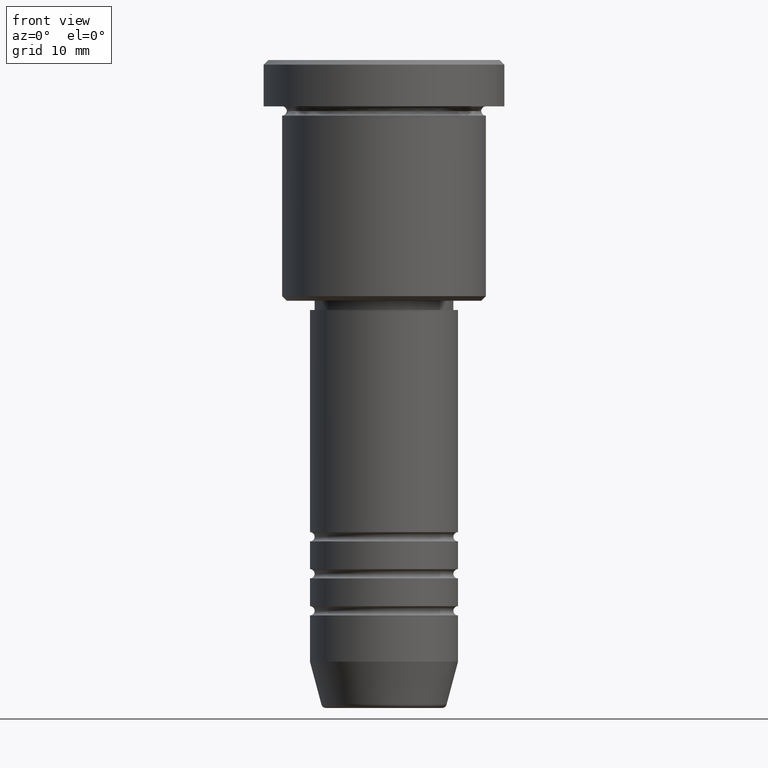
[diagram: clean part render]
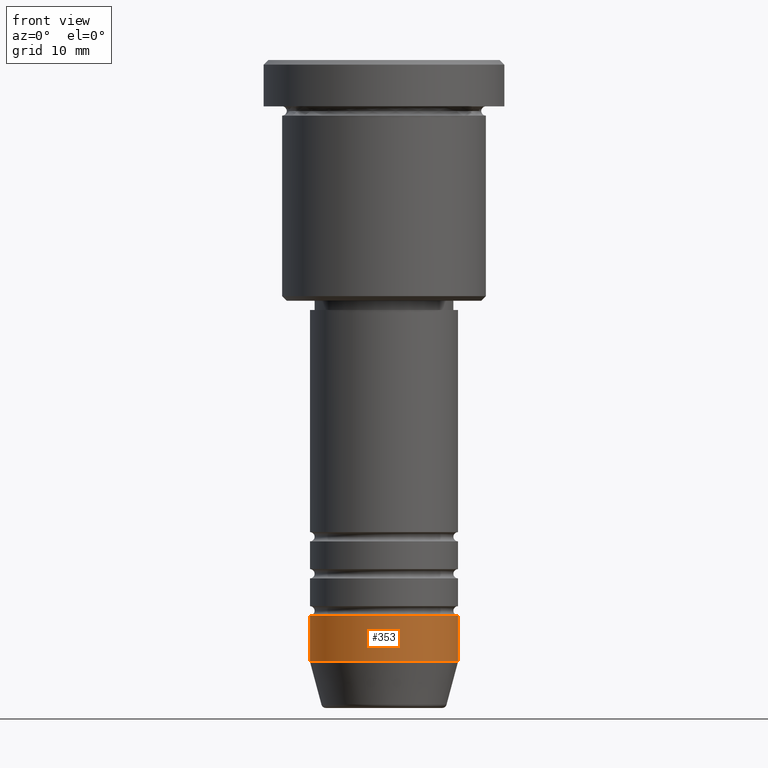
[diagram: same view with one face highlighted and labeled with its STEP entity id]
A machine part, front view. The second image highlights one B-rep face of the part: STEP entity #353.
In plain terms, the highlighted cylindrical surface (partial cylindrical patch) has radius 8 mm, axis along (-0, -0, 1).
Its self-contained STEP definition (entity closure, byte-faithful):
#82 = FACE_OUTER_BOUND ( 'NONE', #662, .T. ) ;
#96 = AXIS2_PLACEMENT_3D ( 'NONE', #217, #597, #515 ) ;
#104 = EDGE_CURVE ( 'NONE', #1140, #510, #168, .T. ) ;
#152 = VERTEX_POINT ( 'NONE', #626 ) ;
#168 = CIRCLE ( 'NONE', #96, 8.000000000000000000 ) ;
#169 = ORIENTED_EDGE ( 'NONE', *, *, #104, .T. ) ;
#195 = EDGE_CURVE ( 'NONE', #510, #152, #767, .T. ) ;
#214 = DIRECTION ( 'NONE',  ( 1.000000000000000000, 0.000000000000000000, 0.000000000000000000 ) ) ;
#217 = CARTESIAN_POINT ( 'NONE',  ( 0.000000000000000000, 0.000000000000000000, -65.00000000000000000 ) ) ;
#254 = DIRECTION ( 'NONE',  ( -0.000000000000000000, -0.000000000000000000, 1.000000000000000000 ) ) ;
#260 = CARTESIAN_POINT ( 'NONE',  ( 8.000000000000000000, 0.000000000000000000, -65.00000000000000000 ) ) ;
#286 = AXIS2_PLACEMENT_3D ( 'NONE', #607, #1051, #214 ) ;
#303 = VECTOR ( 'NONE', #756, 1000.000000000000000 ) ;
#353 = ADVANCED_FACE ( 'NONE', ( #82 ), #424, .T. ) ;
#424 = CYLINDRICAL_SURFACE ( 'NONE', #1154, 8.000000000000000000 ) ;
#453 = CIRCLE ( 'NONE', #286, 8.000000000000000000 ) ;
#510 = VERTEX_POINT ( 'NONE', #260 ) ;
#515 = DIRECTION ( 'NONE',  ( 1.000000000000000000, 0.000000000000000000, 0.000000000000000000 ) ) ;
#577 = CARTESIAN_POINT ( 'NONE',  ( 8.000000000000000000, 0.000000000000000000, 0.000000000000000000 ) ) ;
#595 = LINE ( 'NONE', #860, #303 ) ;
#597 = DIRECTION ( 'NONE',  ( -0.000000000000000000, -0.000000000000000000, 1.000000000000000000 ) ) ;
#600 = ORIENTED_EDGE ( 'NONE', *, *, #195, .T. ) ;
#607 = CARTESIAN_POINT ( 'NONE',  ( 0.000000000000000000, 0.000000000000000000, -60.00000000000000711 ) ) ;
#608 = VECTOR ( 'NONE', #1128, 1000.000000000000000 ) ;
#626 = CARTESIAN_POINT ( 'NONE',  ( 8.000000000000000000, 0.000000000000000000, -60.00000000000000711 ) ) ;
#662 = EDGE_LOOP ( 'NONE', ( #821, #169, #600, #665 ) ) ;
#665 = ORIENTED_EDGE ( 'NONE', *, *, #704, .F. ) ;
#704 = EDGE_CURVE ( 'NONE', #1089, #152, #453, .T. ) ;
#756 = DIRECTION ( 'NONE',  ( -0.000000000000000000, -0.000000000000000000, 1.000000000000000000 ) ) ;
#767 = LINE ( 'NONE', #577, #608 ) ;
#821 = ORIENTED_EDGE ( 'NONE', *, *, #936, .F. ) ;
#860 = CARTESIAN_POINT ( 'NONE',  ( -8.000000000000000000, 9.797174393178825657E-16, 0.000000000000000000 ) ) ;
#936 = EDGE_CURVE ( 'NONE', #1140, #1089, #595, .T. ) ;
#988 = DIRECTION ( 'NONE',  ( 1.000000000000000000, 0.000000000000000000, 0.000000000000000000 ) ) ;
#989 = CARTESIAN_POINT ( 'NONE',  ( -8.000000000000000000, 9.797174393178825657E-16, -65.00000000000000000 ) ) ;
#1051 = DIRECTION ( 'NONE',  ( -0.000000000000000000, -0.000000000000000000, 1.000000000000000000 ) ) ;
#1052 = CARTESIAN_POINT ( 'NONE',  ( -8.000000000000000000, 9.797174393178825657E-16, -60.00000000000000711 ) ) ;
#1085 = CARTESIAN_POINT ( 'NONE',  ( 0.000000000000000000, 0.000000000000000000, 0.000000000000000000 ) ) ;
#1089 = VERTEX_POINT ( 'NONE', #1052 ) ;
#1128 = DIRECTION ( 'NONE',  ( -0.000000000000000000, -0.000000000000000000, 1.000000000000000000 ) ) ;
#1140 = VERTEX_POINT ( 'NONE', #989 ) ;
#1154 = AXIS2_PLACEMENT_3D ( 'NONE', #1085, #254, #988 ) ;